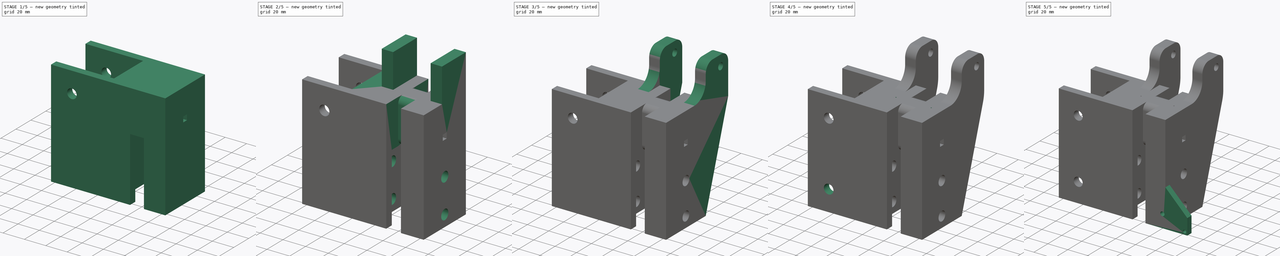
[diagram: build sequence overview — one tinted view per stage of 5, left to right]
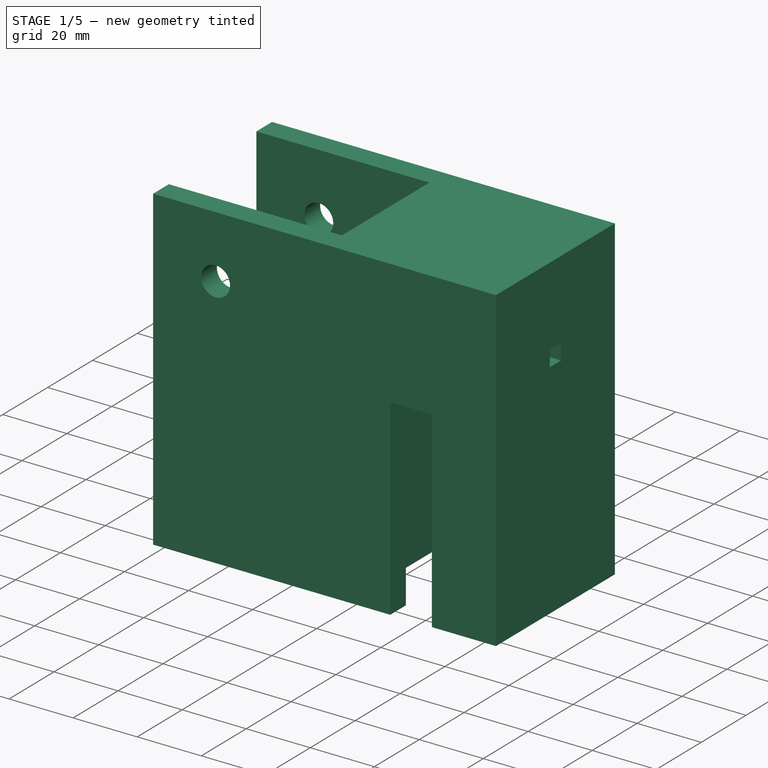
[diagram: stage 1 of 5 — iso view after this stage's code; geometry added in this stage tinted green]
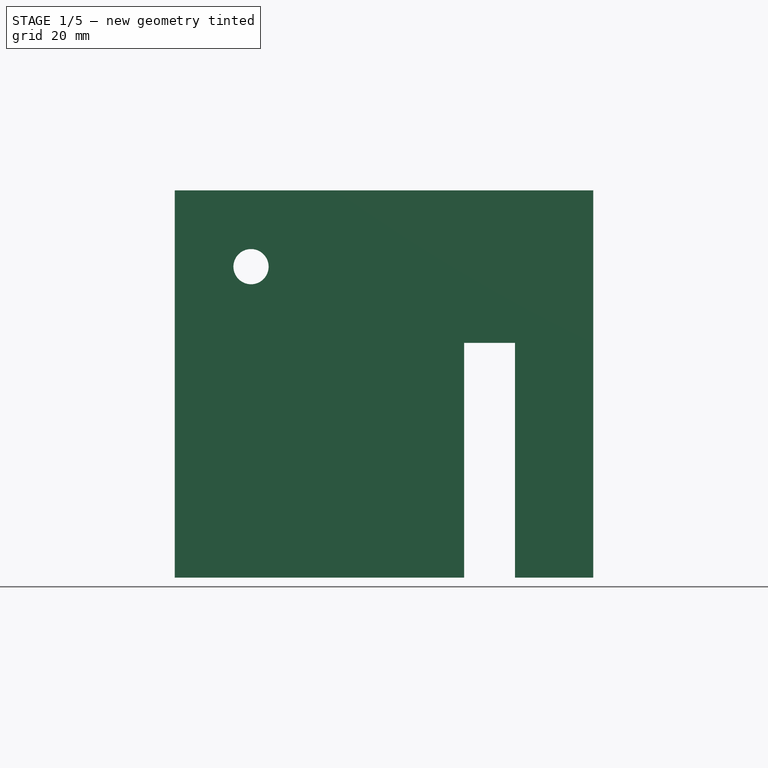
[diagram: stage 1 of 5 — front view after this stage's code; geometry added in this stage tinted green]
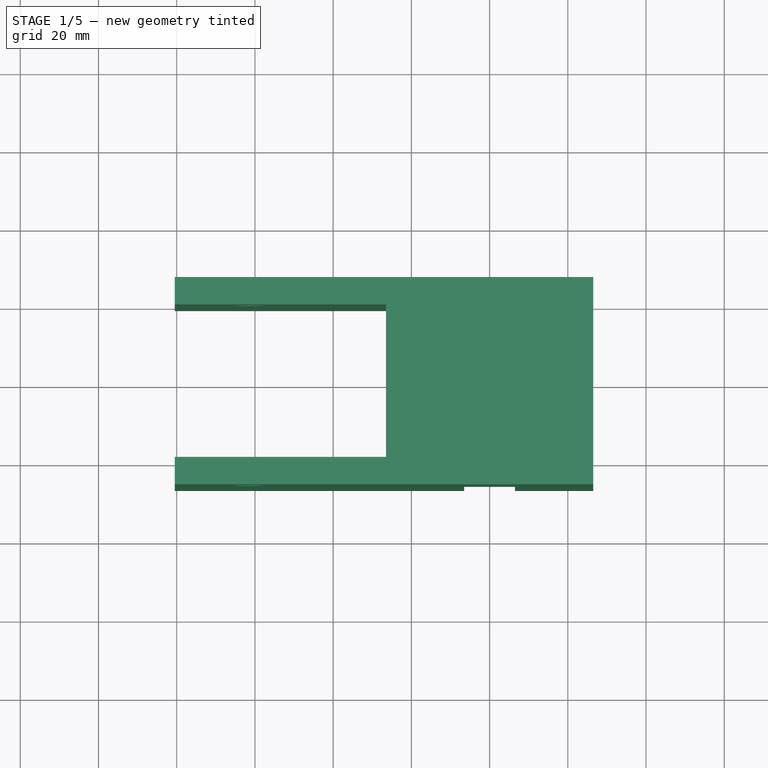
[diagram: stage 1 of 5 — top view after this stage's code; geometry added in this stage tinted green]
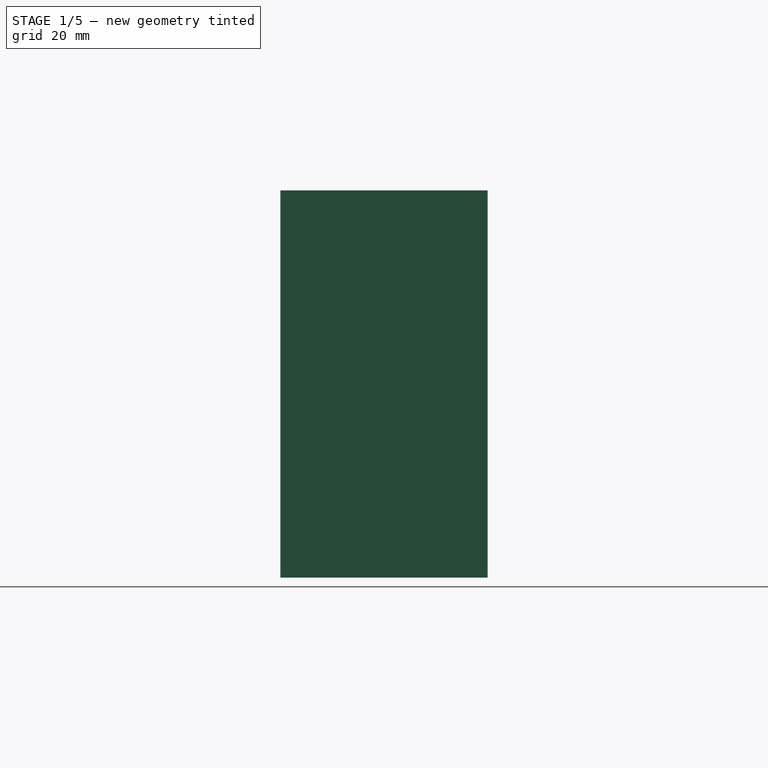
[diagram: stage 1 of 5 — right view after this stage's code; geometry added in this stage tinted green]
FCSTD DOCUMENT  (FreeCAD 1.0R39109 (Git))
Label: ARM_SideTarget_BottomMount_v1
License: All rights reserved
LicenseURL: https://en.wikipedia.org/wiki/All_rights_reserved
objects: Sketcher::SketchObject×18, PartDesign::Pad×14, PartDesign::Pocket×10, PartDesign::Fillet×7, PartDesign::Body×1
note: 130 computed .brp shape members not serialized (recipe doc carries the construction recipe); baked Part::Feature solids carry a one-line shape summary decoded from their .brp

FEATURE [Sketcher::SketchObject] Sketch
  ArcFitTolerance = 1e-06
  AttachmentSupport = -> [XY_Plane]
  FullyConstrained = true
  MakeInternals = false
  MapMode = 5
  sketch-geometry (10):
    g0: LineSegment [constr] StartX=-19.5 StartY=-19.5 StartZ=0 EndX=19.5 EndY=-19.5 EndZ=0
    g1: LineSegment [constr] StartX=19.5 StartY=-19.5 StartZ=0 EndX=19.5 EndY=19.5 EndZ=0
    g2: LineSegment [constr] StartX=19.5 StartY=19.5 StartZ=0 EndX=-19.5 EndY=19.5 EndZ=0
    g3: LineSegment [constr] StartX=-19.5 StartY=19.5 StartZ=0 EndX=-19.5 EndY=-19.5 EndZ=0
    g4: GeomPoint [constr] X=0 Y=0 Z=0
    g5: LineSegment StartX=-26.5 StartY=-26.5 StartZ=0 EndX=26.5 EndY=-26.5 EndZ=0
    g6: LineSegment StartX=26.5 StartY=-26.5 StartZ=0 EndX=26.5 EndY=26.5 EndZ=0
    g7: LineSegment StartX=26.5 StartY=26.5 StartZ=0 EndX=-26.5 EndY=26.5 EndZ=0
    g8: LineSegment StartX=-26.5 StartY=26.5 StartZ=0 EndX=-26.5 EndY=-26.5 EndZ=0
    g9: GeomPoint [constr] X=0 Y=0 Z=0
  constraints (24):
    c: Coincident(g0,g1)
    c: Coincident(g1,g2)
    c: Coincident(g2,g3)
    c: Coincident(g3,g0)
    c: Horizontal(g0)
    c: Horizontal(g2)
    c: Vertical(g1)
    c: Vertical(g3)
    c: Symmetric(g2,g0,g4)
    c: Distance(g1,g3) = 39
    c: Distance(g0,g2) = 39
    c: Coincident(g4,g-1)
    c: Coincident(g5,g6)
    c: Coincident(g6,g7)
    c: Coincident(g7,g8)
    c: Coincident(g8,g5)
    c: Horizontal(g5)
    c: Horizontal(g7)
    c: Vertical(g6)
    c: Vertical(g8)
    c: Symmetric(g7,g5,g9)
    c: Distance(g6,g8) = 53
    c: Distance(g5,g7) = 53
    c: Coincident(g9,g4)
FEATURE [PartDesign::Pad] Pad
  Direction = (0,0,1)
  Length = 39
  Length2 = 10
  Profile = -> Sketch
  ReferenceAxis = -> Sketch [N_Axis]
  Refine = true
  Suppressed = false
  Type = 0
FEATURE [Sketcher::SketchObject] Sketch001
  ArcFitTolerance = 1e-06
  AttachmentSupport = -> [Pad]
  ExternalGeometry = -> [Pad]
  FullyConstrained = true
  MakeInternals = false
  MapMode = 5
  Placement = pos=(0,0,0) rot=(1,0,0;3.14159rad)
  sketch-geometry (16):
    g0: LineSegment StartX=-26.5 StartY=26.5 StartZ=0 EndX=-6.5 EndY=26.5 EndZ=0
    g1: LineSegment StartX=-6.5 StartY=26.5 StartZ=0 EndX=-6.5 EndY=19.5 EndZ=0
    g2: LineSegment StartX=-6.5 StartY=19.5 StartZ=0 EndX=-19.5 EndY=19.5 EndZ=0
    g3: LineSegment StartX=-19.5 StartY=19.5 StartZ=0 EndX=-19.5 EndY=-19.5 EndZ=0
    g4: LineSegment StartX=-19.5 StartY=-19.5 StartZ=0 EndX=-6.5 EndY=-19.5 EndZ=0
    g5: LineSegment StartX=-6.5 StartY=-19.5 StartZ=0 EndX=-6.5 EndY=-26.5 EndZ=0
    g6: LineSegment StartX=-6.5 StartY=-26.5 StartZ=0 EndX=-26.5 EndY=-26.5 EndZ=0
    g7: LineSegment StartX=-26.5 StartY=-26.5 StartZ=0 EndX=-26.5 EndY=26.5 EndZ=0
    g8: LineSegment StartX=26.5 StartY=26.5 StartZ=0 EndX=6.5 EndY=26.5 EndZ=0
    g9: LineSegment StartX=6.5 StartY=26.5 StartZ=0 EndX=6.5 EndY=19.5 EndZ=0
    g10: LineSegment StartX=6.5 StartY=19.5 StartZ=0 EndX=19.5 EndY=19.5 EndZ=0
    g11: LineSegment StartX=19.5 StartY=19.5 StartZ=0 EndX=19.5 EndY=-19.5 EndZ=0
    g12: LineSegment StartX=19.5 StartY=-19.5 StartZ=0 EndX=6.5 EndY=-19.5 EndZ=0
    g13: LineSegment StartX=6.5 StartY=-19.5 StartZ=0 EndX=6.5 EndY=-26.5 EndZ=0
    g14: LineSegment StartX=6.5 StartY=-26.5 StartZ=0 EndX=26.5 EndY=-26.5 EndZ=0
    g15: LineSegment StartX=26.5 StartY=-26.5 StartZ=0 EndX=26.5 EndY=26.5 EndZ=0
  constraints (44):
    c: Distance(g0) = 20
    c: Coincident(g0,g-4)
    c: PointOnObject(g0,g-3)
    c: Distance(g1) = 7
    c: Coincident(g1,g0)
    c: Vertical(g1)
    c: Distance(g2) = 13
    c: Coincident(g2,g1)
    c: Horizontal(g2)
    c: Distance(g3) = 39
    c: Coincident(g3,g2)
    c: Vertical(g3)
    c: Distance(g4) = 13
    c: Coincident(g4,g3)
    c: Horizontal(g4)
    c: Coincident(g5,g4)
    c: PointOnObject(g5,g-6)
    c: Vertical(g5)
    c: Coincident(g6,g5)
    c: Coincident(g6,g-6)
    c: Coincident(g7,g6)
    c: Coincident(g7,g0)
    c: Distance(g8) = 20
    c: Coincident(g8,g-5)
    c: PointOnObject(g8,g-3)
    c: Distance(g9) = 7
    c: Coincident(g9,g8)
    c: Vertical(g9)
    c: Distance(g10) = 13
    c: Coincident(g10,g9)
    c: Horizontal(g10)
    c: Distance(g11) = 39
    c: Coincident(g11,g10)
    c: Vertical(g11)
    c: Distance(g12) = 13
    c: Coincident(g12,g11)
    c: Horizontal(g12)
    c: Coincident(g13,g12)
    c: PointOnObject(g13,g-6)
    c: Vertical(g13)
    c: Coincident(g14,g13)
    c: Coincident(g14,g-6)
    c: Coincident(g15,g14)
    c: Coincident(g15,g8)
FEATURE [PartDesign::Pad] Pad001
  BaseFeature = -> Pad
  Direction = (0,0,-1)
  Length = 60
  Length2 = 10
  Profile = -> Sketch001
  ReferenceAxis = -> Sketch001 [N_Axis]
  Refine = true
  Suppressed = false
  Type = 0
FEATURE [Sketcher::SketchObject] Sketch002
  ArcFitTolerance = 1e-06
  AttachmentSupport = -> [Pad001]
  FullyConstrained = true
  MakeInternals = false
  MapMode = 5
  Placement = pos=(0,0,0) rot=(1,0,0;3.14159rad)
  sketch-geometry (5):
    g0: LineSegment StartX=-2.5 StartY=-2.5 StartZ=0 EndX=2.5 EndY=-2.5 EndZ=0
    g1: LineSegment StartX=2.5 StartY=-2.5 StartZ=0 EndX=2.5 EndY=2.5 EndZ=0
    g2: LineSegment StartX=2.5 StartY=2.5 StartZ=0 EndX=-2.5 EndY=2.5 EndZ=0
    g3: LineSegment StartX=-2.5 StartY=2.5 StartZ=0 EndX=-2.5 EndY=-2.5 EndZ=0
    g4: GeomPoint [constr] X=0 Y=0 Z=0
  constraints (12):
    c: Coincident(g0,g1)
    c: Coincident(g1,g2)
    c: Coincident(g2,g3)
    c: Coincident(g3,g0)
    c: Horizontal(g0)
    c: Horizontal(g2)
    c: Vertical(g1)
    c: Vertical(g3)
    c: Symmetric(g2,g0,g4)
    c: Distance(g1,g3) = 5
    c: Distance(g0,g2) = 5
    c: Coincident(g4,g-1)
FEATURE [PartDesign::Pocket] Pocket
  BaseFeature = -> Pad001
  Direction = (0,0,1)
  Length = 10
  Length2 = 5
  Profile = -> Sketch002
  ReferenceAxis = -> Sketch002 [N_Axis]
  Refine = true
  Suppressed = false
  Type = 0
FEATURE [Sketcher::SketchObject] Sketch003
  ArcFitTolerance = 1e-06
  AttachmentSupport = -> [Pocket]
  FullyConstrained = true
  MakeInternals = false
  MapMode = 5
  Placement = pos=(26.5,0,0) rot=(0.57735,0.57735,0.57735;2.0944rad)
  sketch-geometry (6):
    g0: LineSegment [constr] StartX=0 StartY=0 StartZ=0 EndX=0 EndY=12 EndZ=0
    g1: LineSegment StartX=-2.5 StartY=9.5 StartZ=0 EndX=2.5 EndY=9.5 EndZ=0
    g2: LineSegment StartX=2.5 StartY=9.5 StartZ=0 EndX=2.5 EndY=14.5 EndZ=0
    g3: LineSegment StartX=2.5 StartY=14.5 StartZ=0 EndX=-2.5 EndY=14.5 EndZ=0
    g4: LineSegment StartX=-2.5 StartY=14.5 StartZ=0 EndX=-2.5 EndY=9.5 EndZ=0
    g5: GeomPoint [constr] X=0 Y=12 Z=0
  constraints (15):
    c: Distance(g0) = 12
    c: Coincident(g0,g-1)
    c: PointOnObject(g0,g-2)
    c: Coincident(g1,g2)
    c: Coincident(g2,g3)
    c: Coincident(g3,g4)
    c: Coincident(g4,g1)
    c: Horizontal(g1)
    c: Horizontal(g3)
    c: Vertical(g2)
    c: Vertical(g4)
    c: Symmetric(g3,g1,g5)
    c: Distance(g2,g4) = 5
    c: Distance(g1,g3) = 5
    c: Coincident(g5,g0)
FEATURE [PartDesign::Pocket] Pocket001
  BaseFeature = -> Pocket
  Direction = (-1,0,0)
  Length = 29
  Length2 = 5
  Profile = -> Sketch003
  ReferenceAxis = -> Sketch003 [N_Axis]
  Refine = true
  Suppressed = false
  Type = 0
FEATURE [Sketcher::SketchObject] Sketch004
  ArcFitTolerance = 1e-06
  AttachmentSupport = -> [Pocket001]
  FullyConstrained = true
  MakeInternals = false
  MapMode = 5
  Placement = pos=(-26.5,0,0) rot=(0.57735,-0.57735,-0.57735;2.0944rad)
  sketch-geometry (12):
    g0: LineSegment [constr] StartX=0 StartY=0 StartZ=0 EndX=-26.5 EndY=0 EndZ=0
    g1: LineSegment [constr] StartX=-26.5 StartY=0 StartZ=0 EndX=-26.5 EndY=39 EndZ=0
    g2: LineSegment [constr] StartX=0 StartY=0 StartZ=0 EndX=26.5 EndY=0 EndZ=0
    g3: LineSegment [constr] StartX=26.5 StartY=0 StartZ=0 EndX=26.5 EndY=39 EndZ=0
    g4: LineSegment StartX=-26.5 StartY=39 StartZ=0 EndX=-26.5 EndY=-60 EndZ=0
    g5: LineSegment StartX=-26.5 StartY=-60 StartZ=0 EndX=-19.5 EndY=-60 EndZ=0
    g6: LineSegment StartX=-19.5 StartY=-60 StartZ=0 EndX=-19.5 EndY=39 EndZ=0
    g7: LineSegment StartX=-19.5 StartY=39 StartZ=0 EndX=-26.5 EndY=39 EndZ=0
    g8: LineSegment StartX=26.5 StartY=39 StartZ=0 EndX=19.5 EndY=39 EndZ=0
    g9: LineSegment StartX=19.5 StartY=39 StartZ=0 EndX=19.5 EndY=-60 EndZ=0
    g10: LineSegment StartX=19.5 StartY=-60 StartZ=0 EndX=26.5 EndY=-60 EndZ=0
    g11: LineSegment StartX=26.5 StartY=-60 StartZ=0 EndX=26.5 EndY=39 EndZ=0
  constraints (34):
    c: Distance(g0) = 26.5
    c: Coincident(g0,g-1)
    c: PointOnObject(g0,g-1)
    c: Distance(g1) = 39
    c: Coincident(g1,g0)
    c: Vertical(g1)
    c: Distance(g2) = 26.5
    c: Coincident(g2,g0)
    c: PointOnObject(g2,g-1)
    c: Distance(g3) = 39
    c: Coincident(g3,g2)
    c: Vertical(g3)
    c: Coincident(g4,g5)
    c: Coincident(g5,g6)
    c: Coincident(g6,g7)
    c: Coincident(g7,g4)
    c: Vertical(g4)
    c: Vertical(g6)
    c: Horizontal(g5)
    c: Horizontal(g7)
    c: Distance(g4,g6) = 7
    c: Distance(g5,g7) = 99
    c: Coincident(g4,g1)
    c: Coincident(g8,g9)
    c: Coincident(g9,g10)
    c: Coincident(g10,g11)
    c: Coincident(g11,g8)
    c: Horizontal(g8)
    c: Horizontal(g10)
    c: Vertical(g9)
    c: Vertical(g11)
    c: Distance(g9,g11) = 7
    c: Distance(g8,g10) = 99
    c: Coincident(g8,g3)
FEATURE [PartDesign::Pad] Pad002
  BaseFeature = -> Pocket001
  Direction = (-1,0,0)
  Length = 54
  Length2 = 10
  Profile = -> Sketch004
  ReferenceAxis = -> Sketch004 [N_Axis]
  Refine = true
  Suppressed = false
  Type = 0
FEATURE [Sketcher::SketchObject] Sketch005
  ArcFitTolerance = 1e-06
  AttachmentSupport = -> [Pad002]
  FullyConstrained = true
  MakeInternals = false
  MapMode = 5
  Placement = pos=(0,-26.5,0) rot=(1,0,0;1.5708rad)
  sketch-geometry (7):
    g0: LineSegment [constr] StartX=0 StartY=0 StartZ=0 EndX=-26.5 EndY=0 EndZ=0
    g1: LineSegment [constr] StartX=-26.5 StartY=0 StartZ=0 EndX=-41.5 EndY=0 EndZ=0
    g2: LineSegment [constr] StartX=-41.5 StartY=0 StartZ=0 EndX=-41.5 EndY=19.5 EndZ=0
    g3: LineSegment [constr] StartX=-41.5 StartY=19.5 StartZ=0 EndX=-61 EndY=19.5 EndZ=0
    g4: LineSegment [constr] StartX=-61 StartY=19.5 StartZ=0 EndX=-61 EndY=0 EndZ=0
    g5: LineSegment [constr] StartX=-61 StartY=0 StartZ=0 EndX=-41.5 EndY=0 EndZ=0
    g6: Circle CenterX=-61 CenterY=19.5 CenterZ=0 NormalX=0 NormalY=0 NormalZ=1 AngleXU=0 Radius=4.5
  constraints (19):
    c: Distance(g0) = 26.5
    c: Coincident(g0,g-1)
    c: PointOnObject(g0,g-1)
    c: Distance(g1) = 15
    c: Coincident(g1,g0)
    c: PointOnObject(g1,g-1)
    c: Coincident(g2,g3)
    c: Coincident(g3,g4)
    c: Coincident(g4,g5)
    c: Coincident(g5,g2)
    c: Vertical(g2)
    c: Vertical(g4)
    c: Horizontal(g3)
    c: Horizontal(g5)
    c: Distance(g2,g4) = 19.5
    c: Distance(g3,g5) = 19.5
    c: Coincident(g2,g1)
    c: Diameter(g6) = 9
    c: Coincident(g6,g3)
FEATURE [PartDesign::Pocket] Pocket002
  BaseFeature = -> Pad002
  Direction = (0,1,-2e-16)
  Length = 100
  Length2 = 5
  Profile = -> Sketch005
  ReferenceAxis = -> Sketch005 [N_Axis]
  Refine = true
  Suppressed = false
  Type = 0
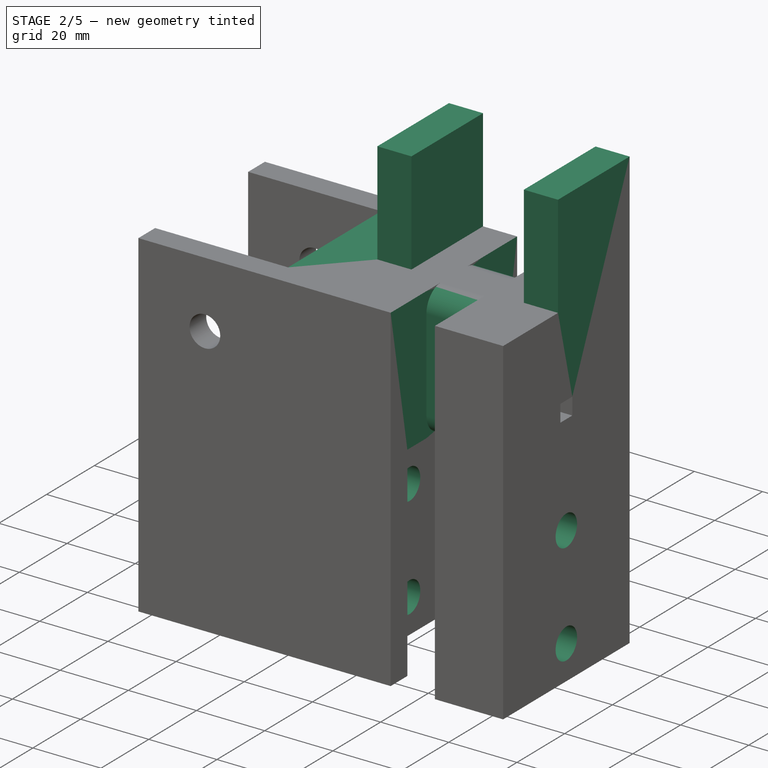
[diagram: stage 2 of 5 — iso view after this stage's code; geometry added in this stage tinted green]
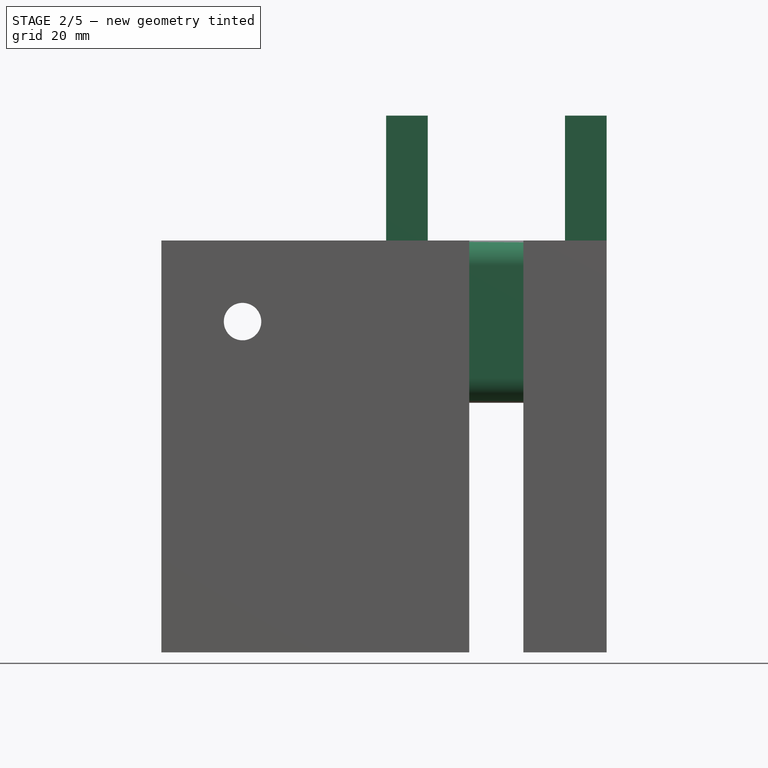
[diagram: stage 2 of 5 — front view after this stage's code; geometry added in this stage tinted green]
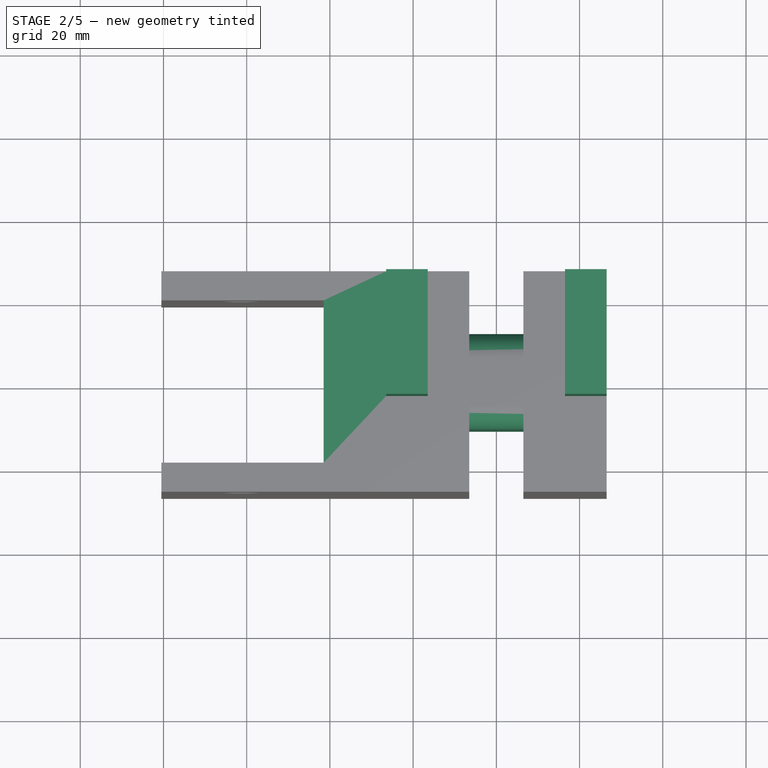
[diagram: stage 2 of 5 — top view after this stage's code; geometry added in this stage tinted green]
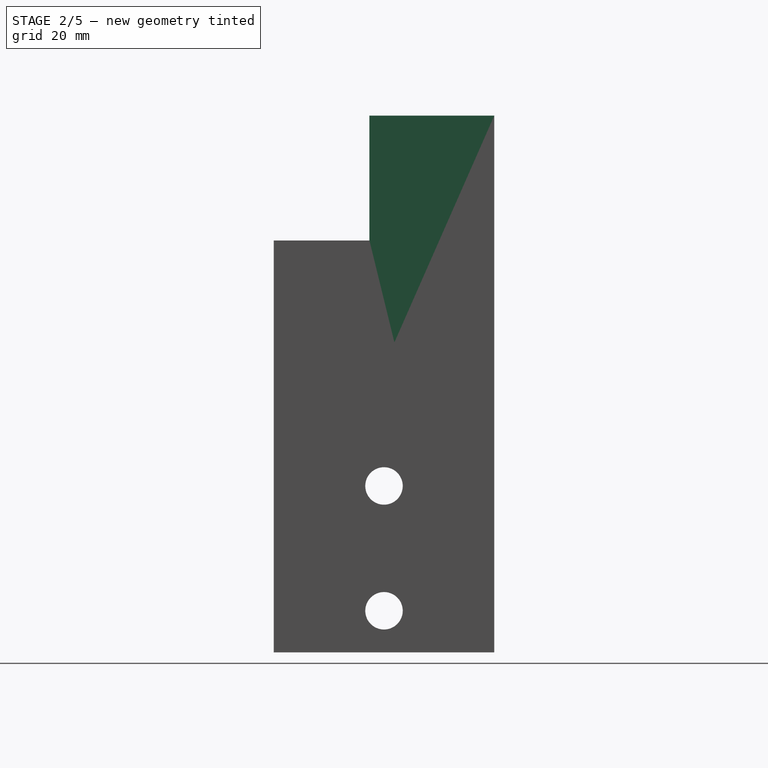
[diagram: stage 2 of 5 — right view after this stage's code; geometry added in this stage tinted green]
FEATURE [Sketcher::SketchObject] Sketch006
  ArcFitTolerance = 1e-06
  AttachmentSupport = -> [Pocket002]
  FullyConstrained = true
  MakeInternals = false
  MapMode = 5
  Placement = pos=(-26.5,0,0) rot=(0.57735,-0.57735,-0.57735;2.0944rad)
  sketch-geometry (5):
    g0: LineSegment [constr] StartX=0 StartY=0 StartZ=0 EndX=-19.5 EndY=0 EndZ=0
    g1: LineSegment StartX=-19.5 StartY=0 StartZ=0 EndX=19.5 EndY=0 EndZ=0
    g2: LineSegment StartX=19.5 StartY=0 StartZ=0 EndX=19.5 EndY=39 EndZ=0
    g3: LineSegment StartX=19.5 StartY=39 StartZ=0 EndX=-19.5 EndY=39 EndZ=0
    g4: LineSegment StartX=-19.5 StartY=39 StartZ=0 EndX=-19.5 EndY=0 EndZ=0
  constraints (14):
    c: Distance(g0) = 19.5
    c: Coincident(g0,g-1)
    c: PointOnObject(g0,g-1)
    c: Coincident(g1,g2)
    c: Coincident(g2,g3)
    c: Coincident(g3,g4)
    c: Coincident(g4,g1)
    c: Horizontal(g1)
    c: Horizontal(g3)
    c: Vertical(g2)
    c: Vertical(g4)
    c: Distance(g2,g4) = 39
    c: Distance(g1,g3) = 39
    c: Coincident(g1,g0)
FEATURE [PartDesign::Pad] Pad003
  BaseFeature = -> Pocket002
  Direction = (-1,0,0)
  Length = 15
  Length2 = 10
  Profile = -> Sketch006
  ReferenceAxis = -> Sketch006 [N_Axis]
  Refine = true
  Suppressed = false
  Type = 0
FEATURE [Sketcher::SketchObject] Sketch007
  ArcFitTolerance = 1e-06
  AttachmentSupport = -> [Pad003]
  FullyConstrained = true
  MakeInternals = false
  MapMode = 5
  Placement = pos=(0,0,39) rot=(0,0,1;0rad)
  sketch-geometry (13):
    g0: LineSegment [constr] StartX=-26.5 StartY=-26.5 StartZ=0 EndX=26.5 EndY=-26.5 EndZ=0
    g1: LineSegment [constr] StartX=26.5 StartY=-26.5 StartZ=0 EndX=26.5 EndY=26.5 EndZ=0
    g2: LineSegment [constr] StartX=26.5 StartY=26.5 StartZ=0 EndX=-26.5 EndY=26.5 EndZ=0
    g3: LineSegment [constr] StartX=-26.5 StartY=26.5 StartZ=0 EndX=-26.5 EndY=-26.5 EndZ=0
    g4: GeomPoint [constr] X=0 Y=0 Z=0
    g5: LineSegment StartX=-26.5 StartY=26.5 StartZ=0 EndX=-26.5 EndY=-3.5 EndZ=0
    g6: LineSegment StartX=-26.5 StartY=-3.5 StartZ=0 EndX=-16.5 EndY=-3.5 EndZ=0
    g7: LineSegment StartX=-16.5 StartY=-3.5 StartZ=0 EndX=-16.5 EndY=26.5 EndZ=0
    g8: LineSegment StartX=-16.5 StartY=26.5 StartZ=0 EndX=-26.5 EndY=26.5 EndZ=0
    g9: LineSegment StartX=26.5 StartY=26.5 StartZ=0 EndX=16.5 EndY=26.5 EndZ=0
    g10: LineSegment StartX=16.5 StartY=26.5 StartZ=0 EndX=16.5 EndY=-3.5 EndZ=0
    g11: LineSegment StartX=16.5 StartY=-3.5 StartZ=0 EndX=26.5 EndY=-3.5 EndZ=0
    g12: LineSegment StartX=26.5 StartY=-3.5 StartZ=0 EndX=26.5 EndY=26.5 EndZ=0
  constraints (34):
    c: Coincident(g0,g1)
    c: Coincident(g1,g2)
    c: Coincident(g2,g3)
    c: Coincident(g3,g0)
    c: Horizontal(g0)
    c: Horizontal(g2)
    c: Vertical(g1)
    c: Vertical(g3)
    c: Symmetric(g2,g0,g4)
    c: Distance(g1,g3) = 53
    c: Distance(g0,g2) = 53
    c: Coincident(g4,g-1)
    c: Coincident(g5,g6)
    c: Coincident(g6,g7)
    c: Coincident(g7,g8)
    c: Coincident(g8,g5)
    c: Vertical(g5)
    c: Vertical(g7)
    c: Horizontal(g6)
    c: Horizontal(g8)
    c: Distance(g5,g7) = 10
    c: Distance(g6,g8) = 30
    c: Coincident(g5,g2)
    c: Coincident(g9,g10)
    c: Coincident(g10,g11)
    c: Coincident(g11,g12)
    c: Coincident(g12,g9)
    c: Horizontal(g9)
    c: Horizontal(g11)
    c: Vertical(g10)
    c: Vertical(g12)
    c: Distance(g10,g12) = 10
    c: Distance(g9,g11) = 30
    c: Coincident(g9,g1)
FEATURE [PartDesign::Pad] Pad004
  BaseFeature = -> Pad003
  Direction = (0,0,1)
  Length = 30
  Length2 = 10
  Profile = -> Sketch007
  ReferenceAxis = -> Sketch007 [N_Axis]
  Refine = true
  Suppressed = false
  Type = 0
FEATURE [Sketcher::SketchObject] Sketch009
  ArcFitTolerance = 1e-06
  FullyConstrained = true
  MakeInternals = false
  MapMode = 5
  Placement = pos=(0,0,0) rot=(1,0,0;3.14159rad)
  sketch-geometry (8):
    g0: LineSegment StartX=-6.5 StartY=26.5 StartZ=0 EndX=-6.5 EndY=11.5 EndZ=0
    g1: LineSegment StartX=-6.5 StartY=11.5 StartZ=0 EndX=6.5 EndY=11.5 EndZ=0
    g2: LineSegment StartX=6.5 StartY=11.5 StartZ=0 EndX=6.5 EndY=26.5 EndZ=0
    g3: LineSegment StartX=6.5 StartY=26.5 StartZ=0 EndX=-6.5 EndY=26.5 EndZ=0
    g4: LineSegment StartX=-6.5 StartY=-26.5 StartZ=0 EndX=6.5 EndY=-26.5 EndZ=0
    g5: LineSegment StartX=6.5 StartY=-26.5 StartZ=0 EndX=6.5 EndY=-11.5 EndZ=0
    g6: LineSegment StartX=6.5 StartY=-11.5 StartZ=0 EndX=-6.5 EndY=-11.5 EndZ=0
    g7: LineSegment StartX=-6.5 StartY=-11.5 StartZ=0 EndX=-6.5 EndY=-26.5 EndZ=0
  constraints (22):
    c: Coincident(g0,g1)
    c: Coincident(g1,g2)
    c: Coincident(g2,g3)
    c: Coincident(g3,g0)
    c: Vertical(g0)
    c: Vertical(g2)
    c: Horizontal(g1)
    c: Horizontal(g3)
    c: Distance(g0,g2) = 13
    c: Distance(g1,g3) = 15
    c: Coincident(g0,g-3)
    c: Coincident(g4,g5)
    c: Coincident(g5,g6)
    c: Coincident(g6,g7)
    c: Coincident(g7,g4)
    c: Horizontal(g4)
    c: Horizontal(g6)
    c: Vertical(g5)
    c: Vertical(g7)
    c: Distance(g5,g7) = 13
    c: Distance(g4,g6) = 15
    c: Coincident(g4,g-4)
FEATURE [PartDesign::Pocket] Pocket004
  BaseFeature = -> Pad004
  Direction = (0,0,1)
  Length = 50
  Length2 = 5
  Profile = -> Sketch009
  ReferenceAxis = -> Sketch009 [N_Axis]
  Refine = true
  Suppressed = false
  Type = 0
FEATURE [Sketcher::SketchObject] Sketch010
  ArcFitTolerance = 1e-06
  AttachmentSupport = -> [Pocket004]
  ExternalGeometry = -> [Pocket004]
  FullyConstrained = true
  MakeInternals = false
  MapMode = 5
  Placement = pos=(26.5,0,0) rot=(0.57735,0.57735,0.57735;2.0944rad)
  sketch-geometry (4):
    g0: LineSegment [constr] StartX=0 StartY=-60 StartZ=0 EndX=0 EndY=-50 EndZ=0
    g1: LineSegment [constr] StartX=0 StartY=-50 StartZ=0 EndX=0 EndY=-20 EndZ=0
    g2: Circle CenterX=0 CenterY=-50 CenterZ=0 NormalX=0 NormalY=0 NormalZ=1 AngleXU=0 Radius=4.5
    g3: Circle CenterX=0 CenterY=-20 CenterZ=0 NormalX=0 NormalY=0 NormalZ=1 AngleXU=0 Radius=4.5
  constraints (10):
    c: Distance(g0) = 10
    c: Symmetric(g-3,g-3,g0)
    c: Vertical(g0)
    c: Distance(g1) = 30
    c: Coincident(g1,g0)
    c: PointOnObject(g1,g-2)
    c: Diameter(g2) = 9
    c: Coincident(g2,g0)
    c: Diameter(g3) = 9
    c: Coincident(g3,g1)
FEATURE [PartDesign::Pocket] Pocket005
  BaseFeature = -> Pocket004
  Direction = (-1,0,0)
  Length = 80
  Length2 = 5
  Profile = -> Sketch010
  ReferenceAxis = -> Sketch010 [N_Axis]
  Refine = true
  Suppressed = false
  Type = 0
FEATURE [PartDesign::Fillet] Fillet
  Base = -> Pocket005 [Edge55,Edge49]
  BaseFeature = -> Pocket005
  Radius = 6
  Refine = true
  SupportTransform = false
  Suppressed = false
  UseAllEdges = false
FEATURE [PartDesign::Fillet] Fillet001
  Base = -> Fillet [Edge11,Edge25]
  BaseFeature = -> Fillet
  Radius = 6
  Refine = true
  SupportTransform = false
  Suppressed = false
  UseAllEdges = false
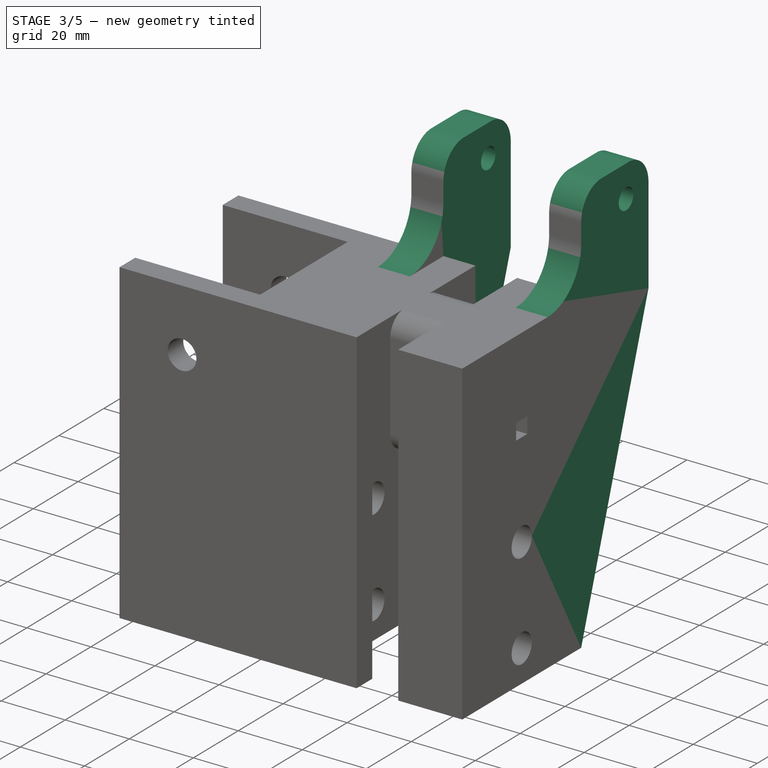
[diagram: stage 3 of 5 — iso view after this stage's code; geometry added in this stage tinted green]
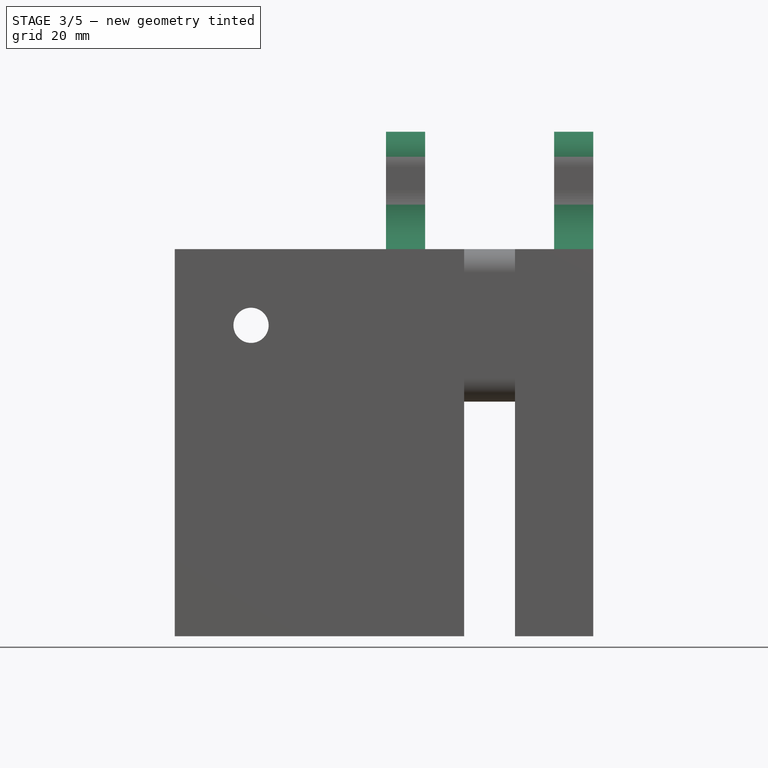
[diagram: stage 3 of 5 — front view after this stage's code; geometry added in this stage tinted green]
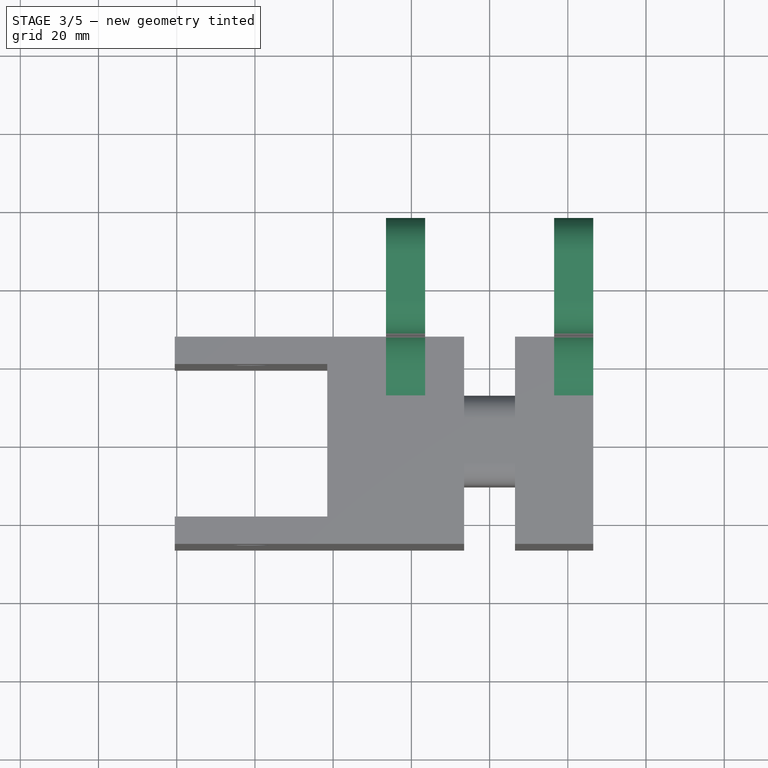
[diagram: stage 3 of 5 — top view after this stage's code; geometry added in this stage tinted green]
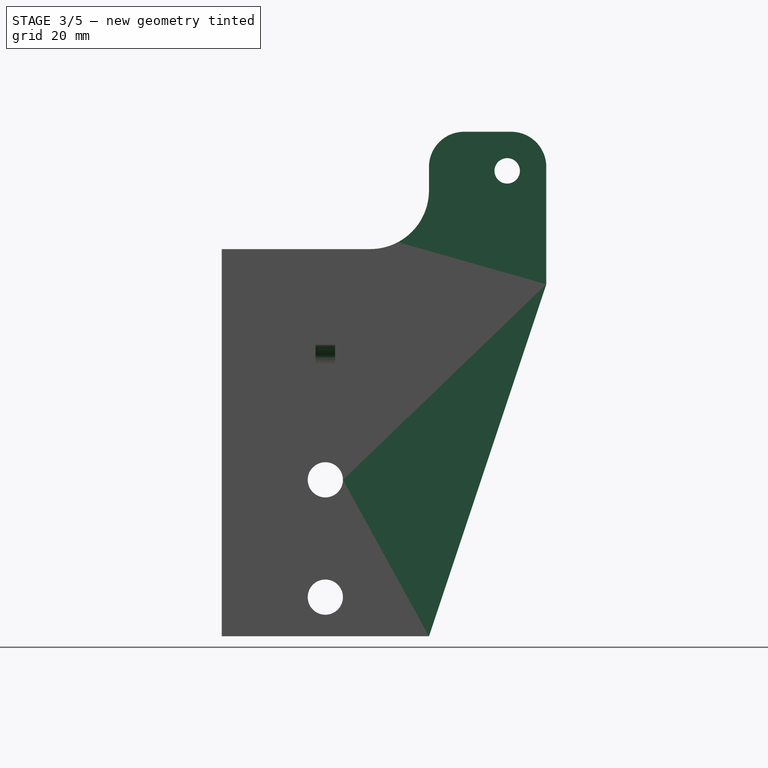
[diagram: stage 3 of 5 — right view after this stage's code; geometry added in this stage tinted green]
FEATURE [PartDesign::Fillet] Fillet002
  Base = -> Fillet001 [Edge138]
  BaseFeature = -> Fillet001
  Radius = 5
  Refine = true
  SupportTransform = false
  Suppressed = false
  UseAllEdges = false
FEATURE [PartDesign::Fillet] Fillet003
  Base = -> Fillet002 [Edge45]
  BaseFeature = -> Fillet002
  Radius = 2.5
  Refine = true
  SupportTransform = false
  Suppressed = false
  UseAllEdges = false
FEATURE [Sketcher::SketchObject] Sketch011
  ArcFitTolerance = 1e-06
  AttachmentSupport = -> [Fillet003]
  ExternalGeometry = -> [Fillet003]
  FullyConstrained = true
  MakeInternals = false
  MapMode = 5
  Placement = pos=(0,26.5,0) rot=(0,0.707107,0.707107;3.14159rad)
  sketch-geometry (8):
    g0: LineSegment StartX=-26.5 StartY=69 StartZ=0 EndX=-26.5 EndY=-60 EndZ=0
    g1: LineSegment StartX=-26.5 StartY=-60 StartZ=0 EndX=-16.5 EndY=-60 EndZ=0
    g2: LineSegment StartX=-16.5 StartY=-60 StartZ=0 EndX=-16.5 EndY=69 EndZ=0
    g3: LineSegment StartX=-16.5 StartY=69 StartZ=0 EndX=-26.5 EndY=69 EndZ=0
    g4: LineSegment StartX=26.5 StartY=69 StartZ=0 EndX=16.5 EndY=69 EndZ=0
    g5: LineSegment StartX=16.5 StartY=69 StartZ=0 EndX=16.5 EndY=-60 EndZ=0
    g6: LineSegment StartX=16.5 StartY=-60 StartZ=0 EndX=26.5 EndY=-60 EndZ=0
    g7: LineSegment StartX=26.5 StartY=-60 StartZ=0 EndX=26.5 EndY=69 EndZ=0
  constraints (22):
    c: Coincident(g0,g1)
    c: Coincident(g1,g2)
    c: Coincident(g2,g3)
    c: Coincident(g3,g0)
    c: Vertical(g0)
    c: Vertical(g2)
    c: Horizontal(g1)
    c: Horizontal(g3)
    c: Distance(g0,g2) = 10
    c: Distance(g1,g3) = 129
    c: Coincident(g0,g-3)
    c: Coincident(g4,g5)
    c: Coincident(g5,g6)
    c: Coincident(g6,g7)
    c: Coincident(g7,g4)
    c: Horizontal(g4)
    c: Horizontal(g6)
    c: Vertical(g5)
    c: Vertical(g7)
    c: Distance(g5,g7) = 10
    c: Distance(g4,g6) = 129
    c: Coincident(g4,g-4)
FEATURE [PartDesign::Pad] Pad005
  BaseFeature = -> Fillet003
  Direction = (0,1,-2e-16)
  Length = 30
  Length2 = 10
  Profile = -> Sketch011
  ReferenceAxis = -> Sketch011 [N_Axis]
  Refine = true
  Suppressed = false
  Type = 0
FEATURE [Sketcher::SketchObject] Sketch012
  ArcFitTolerance = 1e-06
  AttachmentSupport = -> [Pad005]
  ExternalGeometry = -> [Pad005]
  FullyConstrained = true
  MakeInternals = false
  MapMode = 5
  Placement = pos=(26.5,0,0) rot=(0.57735,0.57735,0.57735;2.0944rad)
  sketch-geometry (8):
    g0: LineSegment [constr] StartX=56.5 StartY=69 StartZ=0 EndX=46.5 EndY=69 EndZ=0
    g1: LineSegment [constr] StartX=46.5 StartY=69 StartZ=0 EndX=46.5 EndY=59 EndZ=0
    g2: LineSegment [constr] StartX=46.5 StartY=59 StartZ=0 EndX=56.5 EndY=59 EndZ=0
    g3: LineSegment [constr] StartX=56.5 StartY=59 StartZ=0 EndX=56.5 EndY=69 EndZ=0
    g4: Circle CenterX=46.5 CenterY=59 CenterZ=0 NormalX=0 NormalY=0 NormalZ=1 AngleXU=0 Radius=3.25
    g5: LineSegment StartX=56.5 StartY=-60 StartZ=0 EndX=26.5 EndY=-60 EndZ=0
    g6: LineSegment StartX=56.5 StartY=-60 StartZ=0 EndX=56.5 EndY=30 EndZ=0
    g7: LineSegment StartX=56.5 StartY=30 StartZ=0 EndX=26.5 EndY=-60 EndZ=0
  constraints (21):
    c: Coincident(g0,g1)
    c: Coincident(g1,g2)
    c: Coincident(g2,g3)
    c: Coincident(g3,g0)
    c: Horizontal(g0)
    c: Horizontal(g2)
    c: Vertical(g1)
    c: Vertical(g3)
    c: Distance(g1,g3) = 10
    c: Distance(g0,g2) = 10
    c: Coincident(g0,g-4)
    c: Diameter(g4) = 6.5
    c: Coincident(g4,g1)
    c: Distance(g5) = 30
    c: Coincident(g5,g-4)
    c: Horizontal(g5)
    c: Distance(g6) = 90
    c: Coincident(g6,g5)
    c: PointOnObject(g6,g-4)
    c: Coincident(g7,g6)
    c: Coincident(g7,g5)
FEATURE [PartDesign::Pocket] Pocket006
  BaseFeature = -> Pad005
  Direction = (-1,0,0)
  Length = 80
  Length2 = 5
  Profile = -> Sketch012
  ReferenceAxis = -> Sketch012 [N_Axis]
  Refine = true
  Suppressed = false
  Type = 0
FEATURE [Sketcher::SketchObject] Sketch013
  ArcFitTolerance = 1e-06
  AttachmentSupport = -> [Pocket006]
  ExternalGeometry = -> [Pocket006]
  FullyConstrained = true
  MakeInternals = false
  MapMode = 5
  Placement = pos=(0,0,69) rot=(0,0,1;0rad)
  sketch-geometry (8):
    g0: LineSegment [constr] StartX=-26.5 StartY=56.5 StartZ=0 EndX=-26.5 EndY=26.5 EndZ=0
    g1: LineSegment [constr] StartX=-26.5 StartY=26.5 StartZ=0 EndX=26.5 EndY=26.5 EndZ=0
    g2: LineSegment [constr] StartX=26.5 StartY=26.5 StartZ=0 EndX=26.5 EndY=56.5 EndZ=0
    g3: LineSegment [constr] StartX=26.5 StartY=56.5 StartZ=0 EndX=-26.5 EndY=56.5 EndZ=0
    g4: LineSegment StartX=-26.5 StartY=26.5 StartZ=0 EndX=-26.5 EndY=-3.5 EndZ=0
    g5: LineSegment StartX=-26.5 StartY=-3.5 StartZ=0 EndX=26.5 EndY=-3.5 EndZ=0
    g6: LineSegment StartX=26.5 StartY=-3.5 StartZ=0 EndX=26.5 EndY=26.5 EndZ=0
    g7: LineSegment StartX=26.5 StartY=26.5 StartZ=0 EndX=-26.5 EndY=26.5 EndZ=0
  constraints (20):
    c: Coincident(g0,g1)
    c: Coincident(g1,g2)
    c: Coincident(g2,g3)
    c: Coincident(g3,g0)
    c: Vertical(g0)
    c: Vertical(g2)
    c: Horizontal(g1)
    c: Horizontal(g3)
    c: Coincident(g0,g-3)
    c: Symmetric(g-4,g-4,g1)
    c: Coincident(g4,g5)
    c: Coincident(g5,g6)
    c: Coincident(g6,g7)
    c: Coincident(g7,g4)
    c: Vertical(g4)
    c: Vertical(g6)
    c: Horizontal(g5)
    c: Horizontal(g7)
    c: Coincident(g4,g0)
    c: Coincident(g5,g-4)
FEATURE [PartDesign::Pocket] Pocket007
  BaseFeature = -> Pocket006
  Direction = (0,0,-1)
  Length = 30
  Length2 = 5
  Profile = -> Sketch013
  ReferenceAxis = -> Sketch013 [N_Axis]
  Refine = true
  Suppressed = false
  Type = 0
FEATURE [PartDesign::Fillet] Fillet004
  Base = -> Pocket007 [Edge154,Edge88]
  BaseFeature = -> Pocket007
  Radius = 15
  Refine = true
  SupportTransform = false
  Suppressed = false
  UseAllEdges = false
FEATURE [PartDesign::Fillet] Fillet005
  Base = -> Fillet004 [Edge169,Edge42,Edge170,Edge51]
  BaseFeature = -> Fillet004
  Radius = 9
  Refine = true
  SupportTransform = false
  Suppressed = false
  UseAllEdges = false
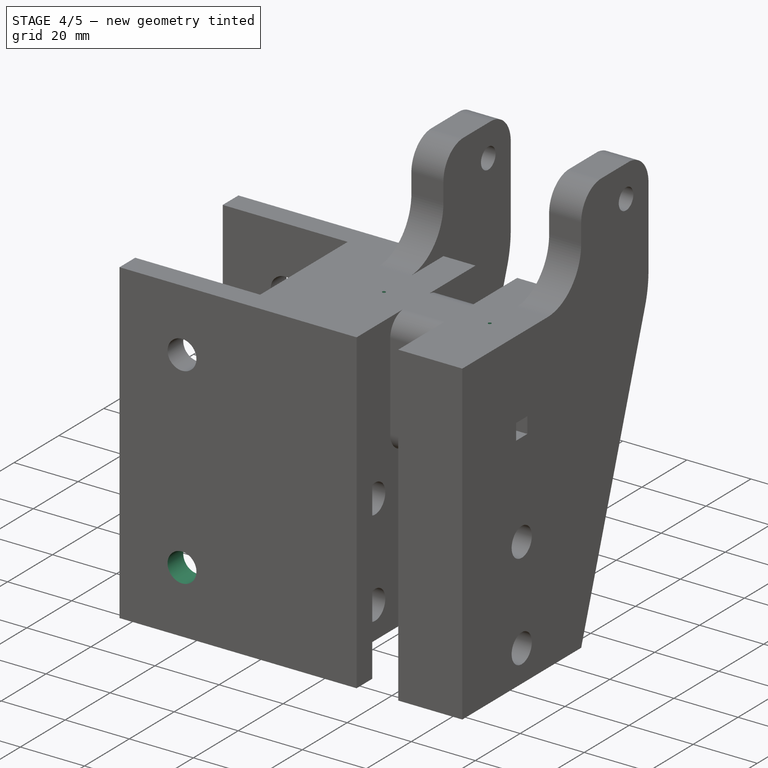
[diagram: stage 4 of 5 — iso view after this stage's code; geometry added in this stage tinted green]
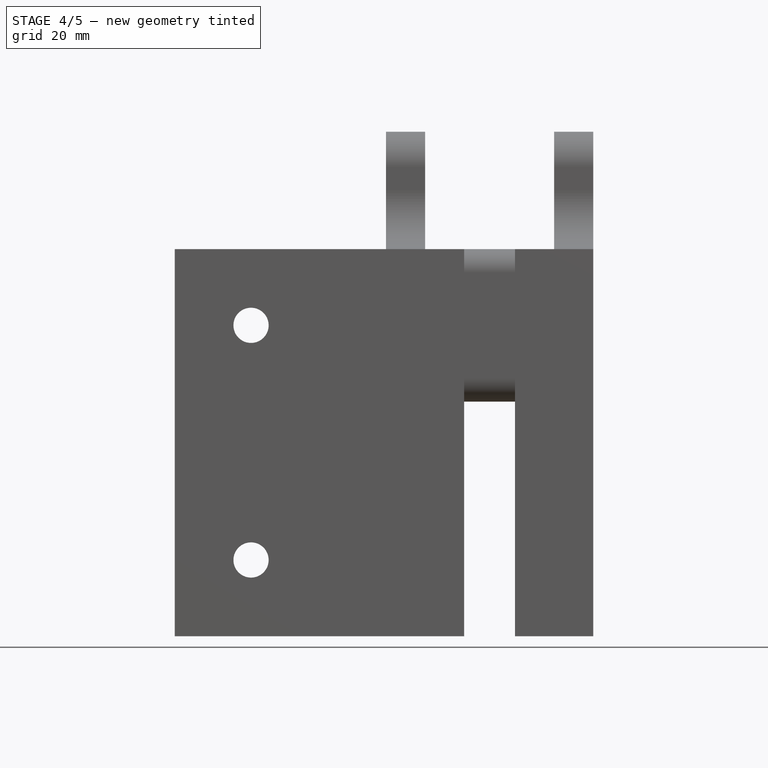
[diagram: stage 4 of 5 — front view after this stage's code; geometry added in this stage tinted green]
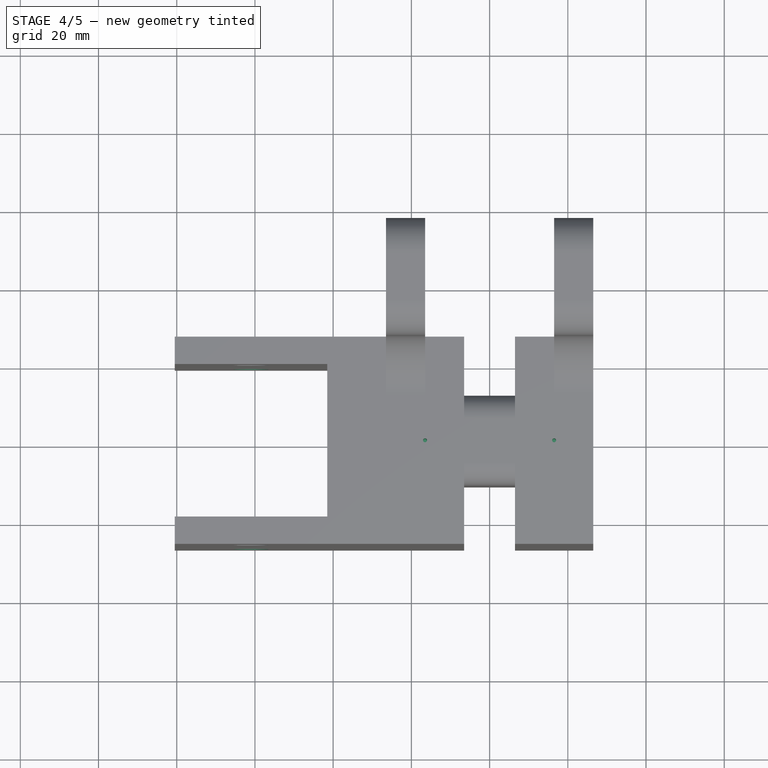
[diagram: stage 4 of 5 — top view after this stage's code; geometry added in this stage tinted green]
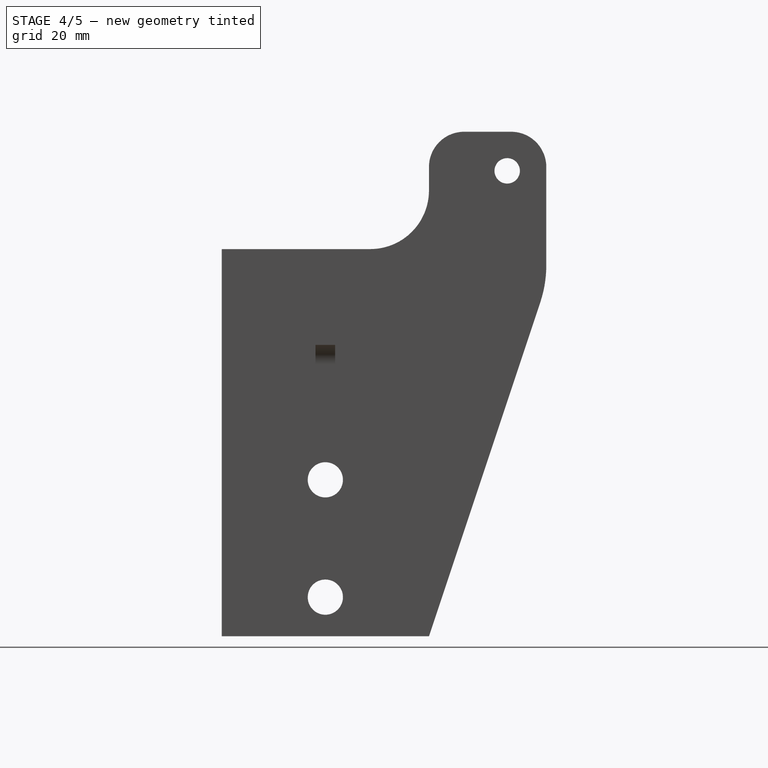
[diagram: stage 4 of 5 — right view after this stage's code; geometry added in this stage tinted green]
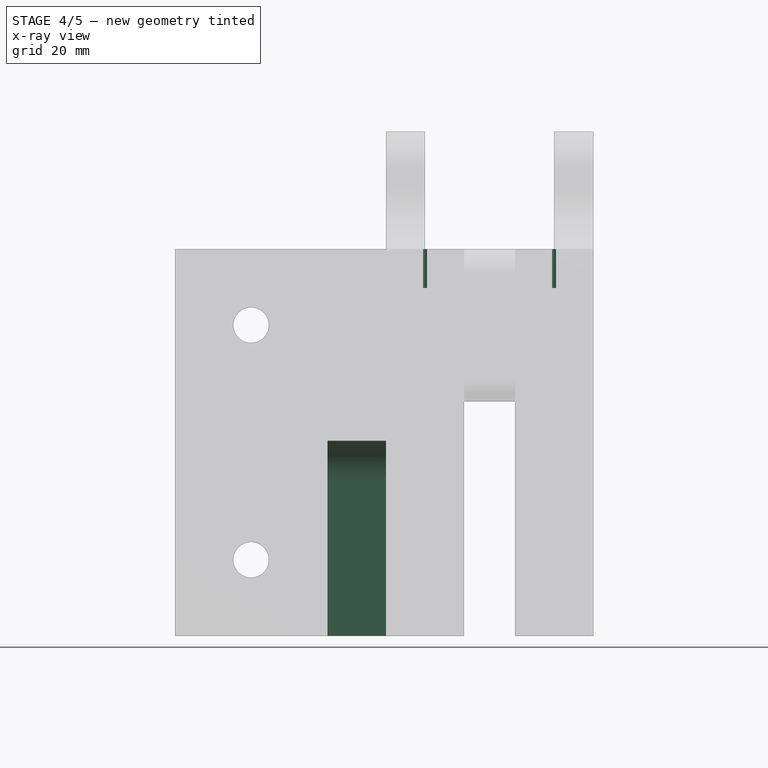
[diagram: stage 4 of 5 — x-ray composite at the front view; earlier geometry ghosted, this stage's added geometry solid]
FEATURE [PartDesign::Fillet] Fillet006
  Base = -> Fillet005 [Edge183,Edge52]
  BaseFeature = -> Fillet005
  Radius = 30
  Refine = true
  SupportTransform = false
  Suppressed = false
  UseAllEdges = false
FEATURE [Sketcher::SketchObject] Sketch014
  ArcFitTolerance = 1e-06
  AttachmentSupport = -> [Fillet006]
  FullyConstrained = false
  MakeInternals = false
  MapMode = 5
  Placement = pos=(0,0,39) rot=(0,0,1;0rad)
  sketch-geometry (4):
    g0: LineSegment [constr] StartX=0 StartY=0 StartZ=0 EndX=-16.5 EndY=0 EndZ=0
    g1: LineSegment [constr] StartX=0 StartY=0 StartZ=0 EndX=16.5 EndY=0 EndZ=0
    g2: Circle CenterX=16.5 CenterY=0 CenterZ=0 NormalX=0 NormalY=0 NormalZ=1 AngleXU=0 Radius=0.5
    g3: Circle CenterX=-16.5 CenterY=0 CenterZ=0 NormalX=0 NormalY=0 NormalZ=1 AngleXU=0 Radius=0.5
  constraints (8):
    c: Distance(g0) = 16.5
    c: Coincident(g0,g-1)
    c: PointOnObject(g0,g-1)
    c: Distance(g1) = 16.5
    c: Diameter(g2) = 1
    c: Coincident(g2,g1)
    c: Diameter(g3) = 1
    c: Coincident(g3,g0)
FEATURE [PartDesign::Pocket] Pocket008
  BaseFeature = -> Fillet006
  Direction = (0,0,-1)
  Length = 10
  Length2 = 5
  Profile = -> Sketch014
  ReferenceAxis = -> Sketch014 [N_Axis]
  Refine = true
  Suppressed = false
  Type = 0
FEATURE [Sketcher::SketchObject] Sketch015
  ArcFitTolerance = 1e-06
  AttachmentSupport = -> [Pocket008]
  ExternalGeometry = -> [Pocket008]
  FullyConstrained = true
  MakeInternals = false
  MapMode = 5
  Placement = pos=(0,-26.5,0) rot=(1,0,0;1.5708rad)
  sketch-geometry (5):
    g0: LineSegment [constr] StartX=-80.5 StartY=-60 StartZ=0 EndX=-61 EndY=-60 EndZ=0
    g1: LineSegment [constr] StartX=-61 StartY=-60 StartZ=0 EndX=-61 EndY=-40.5 EndZ=0
    g2: LineSegment [constr] StartX=-61 StartY=-40.5 StartZ=0 EndX=-80.5 EndY=-40.5 EndZ=0
    g3: LineSegment [constr] StartX=-80.5 StartY=-40.5 StartZ=0 EndX=-80.5 EndY=-60 EndZ=0
    g4: Circle CenterX=-61 CenterY=-40.5 CenterZ=0 NormalX=0 NormalY=0 NormalZ=1 AngleXU=0 Radius=4.5
  constraints (13):
    c: Coincident(g0,g1)
    c: Coincident(g1,g2)
    c: Coincident(g2,g3)
    c: Coincident(g3,g0)
    c: Horizontal(g0)
    c: Horizontal(g2)
    c: Vertical(g1)
    c: Vertical(g3)
    c: Distance(g1,g3) = 19.5
    c: Distance(g0,g2) = 19.5
    c: Coincident(g0,g-3)
    c: Diameter(g4) = 9
    c: Coincident(g4,g1)
FEATURE [PartDesign::Pocket] Pocket009
  BaseFeature = -> Pocket008
  Direction = (0,1,-2e-16)
  Length = 80
  Length2 = 5
  Profile = -> Sketch015
  ReferenceAxis = -> Sketch015 [N_Axis]
  Refine = true
  Suppressed = false
  Type = 0
FEATURE [Sketcher::SketchObject] Sketch016
  ArcFitTolerance = 1e-06
  AttachmentSupport = -> [Pocket009]
  ExternalGeometry = -> [Pocket009]
  FullyConstrained = false
  MakeInternals = false
  MapMode = 5
  Placement = pos=(-26.5,0,0) rot=(0.57735,-0.57735,-0.57735;2.0944rad)
  sketch-geometry (10):
    g0: LineSegment StartX=-19.5 StartY=0 StartZ=0 EndX=-19.5 EndY=-60 EndZ=0
    g1: LineSegment StartX=-19.5 StartY=-60 StartZ=0 EndX=-10 EndY=-60 EndZ=0
    g2: LineSegment StartX=19.5 StartY=-60 StartZ=0 EndX=19.5 EndY=0 EndZ=0
    g3: LineSegment StartX=19.5 StartY=0 StartZ=0 EndX=-19.5 EndY=0 EndZ=0
    g4: ArcOfCircle CenterX=0 CenterY=-20 CenterZ=0 NormalX=0 NormalY=0 NormalZ=1 AngleXU=0 Radius=10 StartAngle=0 EndAngle=3.14159
    g5: LineSegment [constr] StartX=0 StartY=-20 StartZ=0 EndX=0 EndY=-60 EndZ=0
    g6: LineSegment StartX=10 StartY=-60 StartZ=0 EndX=10 EndY=-20 EndZ=0
    g7: LineSegment StartX=-10 StartY=-20 StartZ=0 EndX=-10 EndY=-60 EndZ=0
    g8: GeomPoint [constr] X=0 Y=-40 Z=0
    g9: LineSegment StartX=10 StartY=-60 StartZ=0 EndX=19.5 EndY=-60 EndZ=0
  constraints (18):
    c: Coincident(g0,g1)
    c: Coincident(g9,g2)
    c: Coincident(g2,g3)
    c: Coincident(g3,g0)
    c: Vertical(g0)
    c: Vertical(g2)
    c: Horizontal(g1)
    c: Horizontal(g3)
    c: Coincident(g0,g-3)
    c: Coincident(g9,g-4)
    c: Diameter(g4) = 20
    c: Coincident(g4,g-5)
    c: Coincident(g5,g4)
    c: Symmetric(g1,g9,g5)
    c: Vertical(g6)
    c: Vertical(g7)
    c: Distance(g6,g7) = 20
    c: Coincident(g4,g6)
FEATURE [PartDesign::Pad] Pad006
  BaseFeature = -> Pocket009
  Direction = (-1,0,0)
  Length = 15
  Length2 = 10
  Profile = -> Sketch016
  ReferenceAxis = -> Sketch016 [N_Axis]
  Refine = true
  Suppressed = false
  Type = 0
FEATURE [PartDesign::Pad] Pad007
  BaseFeature = -> Pad006
  Direction = (1,0,0)
  Length = 0.25
  Length2 = 10
  Profile = -> Pad006 [Face68]
  Refine = true
  Suppressed = false
  Type = 0
FEATURE [PartDesign::Pad] Pad008
  BaseFeature = -> Pad007
  Direction = (-1,0,0)
  Length = 0.25
  Length2 = 10
  Profile = -> Pad007 [Face24]
  Refine = true
  Suppressed = false
  Type = 0
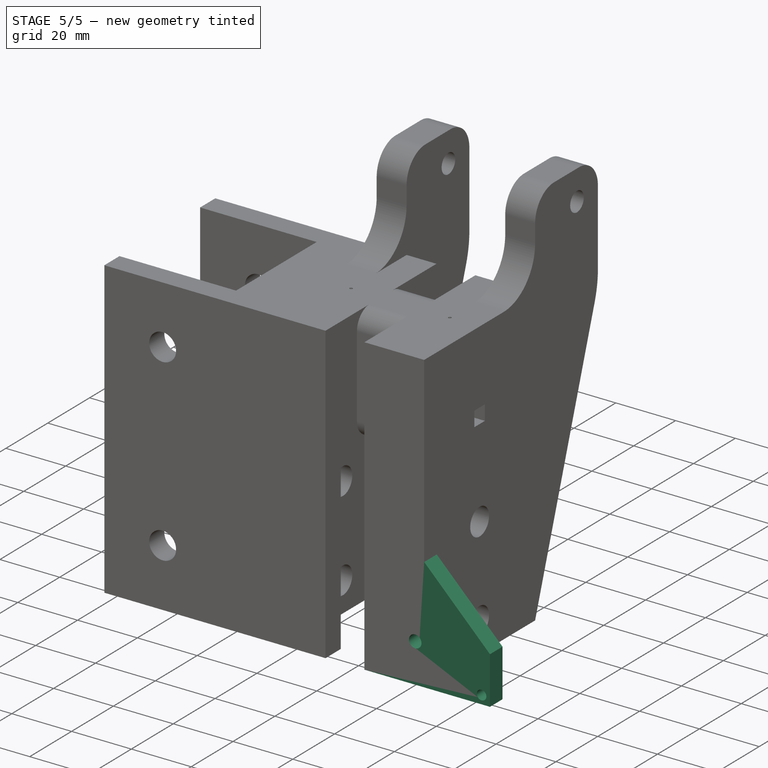
[diagram: stage 5 of 5 — iso view after this stage's code; geometry added in this stage tinted green]
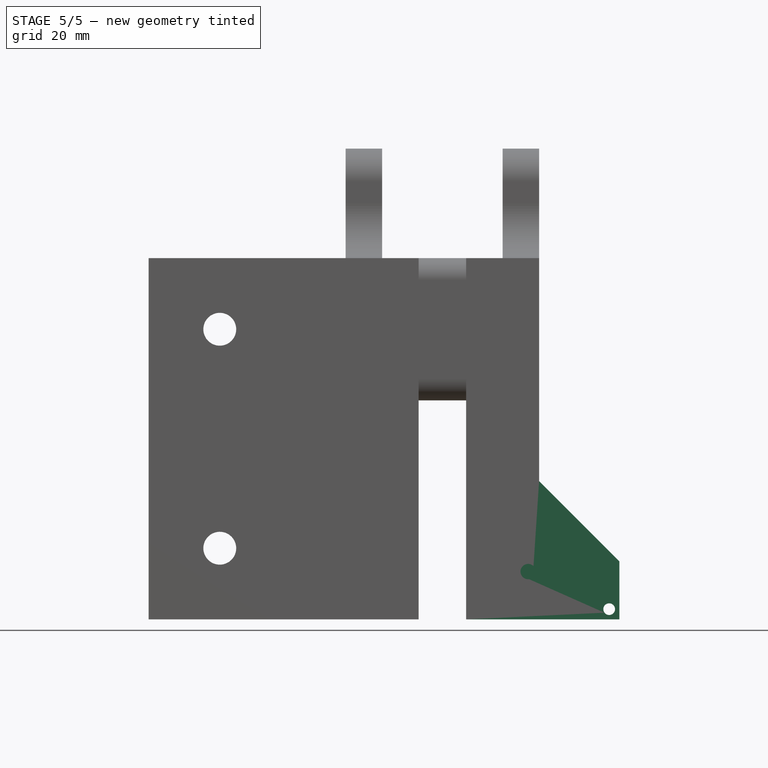
[diagram: stage 5 of 5 — front view after this stage's code; geometry added in this stage tinted green]
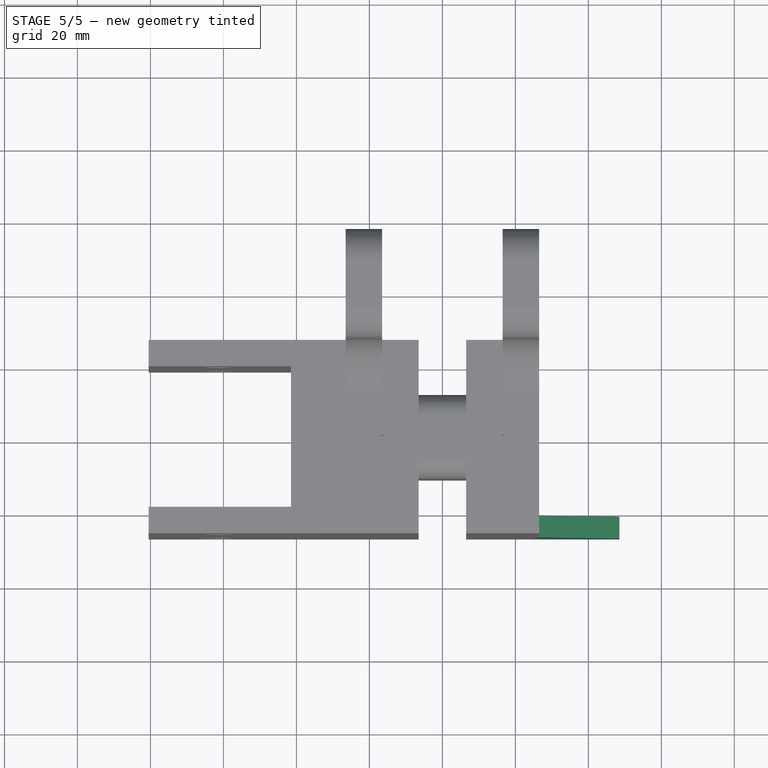
[diagram: stage 5 of 5 — top view after this stage's code; geometry added in this stage tinted green]
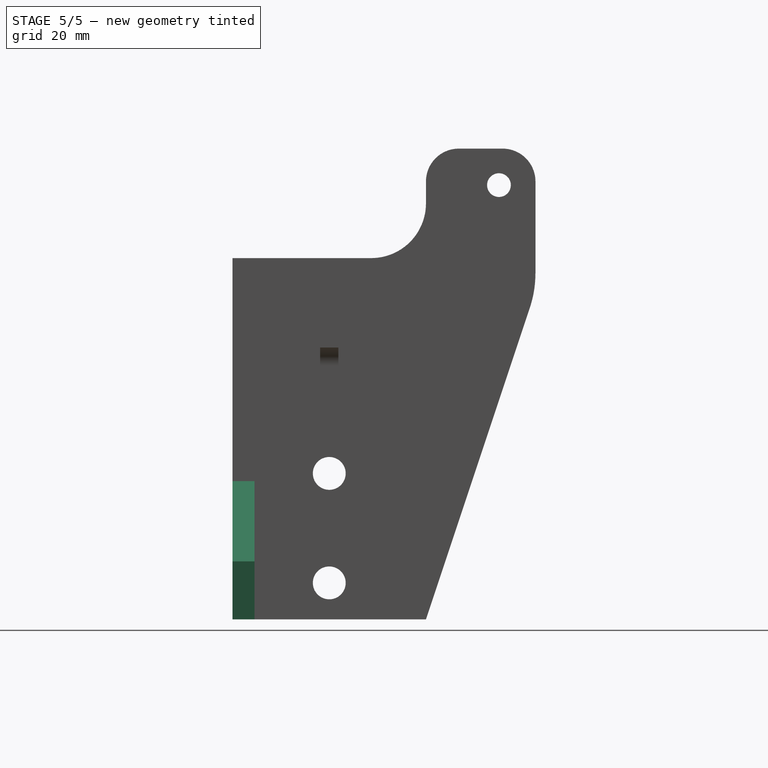
[diagram: stage 5 of 5 — right view after this stage's code; geometry added in this stage tinted green]
FEATURE [PartDesign::Pad] Pad009
  BaseFeature = -> Pad008
  Direction = (0,-1,0)
  Length = 0.25
  Length2 = 10
  Profile = -> Pad008 [Face54,Face20]
  Refine = true
  Suppressed = false
  Type = 0
FEATURE [PartDesign::Pad] Pad010
  BaseFeature = -> Pad009
  Direction = (0,1,0)
  Length = 0.25
  Length2 = 10
  Profile = -> Pad009 [Face50,Face21]
  Refine = true
  Suppressed = false
  Type = 0
FEATURE [Sketcher::SketchObject] Sketch017
  ArcFitTolerance = 1e-06
  AttachmentSupport = -> [Pad010]
  ExternalGeometry = -> [Pad010]
  FullyConstrained = false
  MakeInternals = false
  MapMode = 5
  Placement = pos=(0,-26.5,0) rot=(1,0,0;1.5708rad)
  sketch-geometry (12):
    g0: LineSegment [constr] StartX=6.5 StartY=-60 StartZ=0 EndX=19.5 EndY=-60 EndZ=0
    g1: LineSegment [constr] StartX=19.5 StartY=-60 StartZ=0 EndX=20.7 EndY=-60 EndZ=0
    g2: LineSegment StartX=20.7 StartY=-60 StartZ=0 EndX=40.3934 EndY=-60 EndZ=0
    g3: LineSegment StartX=48.5 StartY=-51.8934 StartZ=0 EndX=48.5 EndY=-44.1 EndZ=0
    g4: LineSegment StartX=48.5 StartY=-44.1 StartZ=0 EndX=20.7 EndY=-16.3 EndZ=0
    g5: LineSegment StartX=20.7 StartY=-60 StartZ=0 EndX=20.7 EndY=-16.3 EndZ=0
    g6: LineSegment [constr] StartX=48.5 StartY=-60 StartZ=0 EndX=48.5 EndY=-57.2 EndZ=0
    g7: LineSegment [constr] StartX=48.5 StartY=-57.2 StartZ=0 EndX=45.7 EndY=-57.2 EndZ=0
    g8: LineSegment [constr] StartX=45.7 StartY=-57.2 StartZ=0 EndX=45.7 EndY=-60 EndZ=0
    g9: LineSegment [constr] StartX=45.7 StartY=-60 StartZ=0 EndX=48.5 EndY=-60 EndZ=0
    g10: LineSegment StartX=40.3934 StartY=-60 StartZ=0 EndX=48.5 EndY=-60 EndZ=0
    g11: LineSegment StartX=48.5 StartY=-60 StartZ=0 EndX=48.5 EndY=-51.8934 EndZ=0
  constraints (30):
    c: Distance(g0) = 13
    c: Coincident(g0,g-3)
    c: PointOnObject(g0,g-3)
    c: Distance(g1) = 1.2
    c: Coincident(g1,g0)
    c: PointOnObject(g1,g-3)
    c: Coincident(g2,g1)
    c: Horizontal(g2)
    c: Vertical(g3)
    c: Angle(g-1,g4) = 2.35619
    c: Coincident(g4,g3)
    c: Coincident(g5,g1)
    c: Vertical(g5)
    c: Coincident(g5,g4)
    c: Coincident(g6,g7)
    c: Coincident(g7,g8)
    c: Coincident(g8,g9)
    c: Coincident(g9,g6)
    c: Vertical(g6)
    c: Vertical(g8)
    c: Horizontal(g7)
    c: Horizontal(g9)
    c: Distance(g6,g8) = 2.8
    c: Distance(g7,g9) = 2.8
    c: Coincident(g10,g2)
    c: Coincident(g10,g6)
    c: Horizontal(g10)
    c: Coincident(g11,g6)
    c: Coincident(g11,g3)
    c: Vertical(g11)
FEATURE [PartDesign::Pad] Pad011
  BaseFeature = -> Pad010
  Direction = (0,-1,2e-16)
  Length = 6
  Length2 = 10
  Profile = -> Sketch017
  ReferenceAxis = -> Sketch017 [N_Axis]
  Refine = true
  Reversed = true
  Suppressed = false
  Type = 0
FEATURE [Sketcher::SketchObject] Sketch018
  ArcFitTolerance = 1e-06
  AttachmentSupport = -> [Pad011]
  ExternalGeometry = -> [Pad011]
  FullyConstrained = true
  MakeInternals = false
  MapMode = 5
  Placement = pos=(-6.2e-15,-26.5,0) rot=(1,0,0;1.5708rad)
  sketch-geometry (10):
    g0: LineSegment [constr] StartX=48.5 StartY=-60 StartZ=0 EndX=48.5 EndY=-57.2 EndZ=0
    g1: LineSegment [constr] StartX=48.5 StartY=-57.2 StartZ=0 EndX=45.7 EndY=-57.2 EndZ=0
    g2: LineSegment [constr] StartX=45.7 StartY=-57.2 StartZ=0 EndX=45.7 EndY=-60 EndZ=0
    g3: LineSegment [constr] StartX=45.7 StartY=-60 StartZ=0 EndX=48.5 EndY=-60 EndZ=0
    g4: LineSegment [constr] StartX=45.7 StartY=-57.2 StartZ=0 EndX=45.7 EndY=-46.9 EndZ=0
    g5: LineSegment [constr] StartX=45.7 StartY=-46.9 StartZ=0 EndX=23.5 EndY=-46.9 EndZ=0
    g6: LineSegment [constr] StartX=23.5 StartY=-46.9 StartZ=0 EndX=23.5 EndY=-57.2 EndZ=0
    g7: LineSegment [constr] StartX=23.5 StartY=-57.2 StartZ=0 EndX=45.7 EndY=-57.2 EndZ=0
    g8: Circle CenterX=23.5 CenterY=-46.9 CenterZ=0 NormalX=0 NormalY=0 NormalZ=1 AngleXU=0 Radius=2.1
    g9: Circle CenterX=45.7 CenterY=-57.2 CenterZ=0 NormalX=0 NormalY=0 NormalZ=1 AngleXU=0 Radius=1.6
  constraints (26):
    c: Coincident(g0,g1)
    c: Coincident(g1,g2)
    c: Coincident(g2,g3)
    c: Coincident(g3,g0)
    c: Vertical(g0)
    c: Vertical(g2)
    c: Horizontal(g1)
    c: Horizontal(g3)
    c: Distance(g0,g2) = 2.8
    c: Distance(g1,g3) = 2.8
    c: Coincident(g0,g-3)
    c: Coincident(g4,g5)
    c: Coincident(g5,g6)
    c: Coincident(g6,g7)
    c: Coincident(g7,g4)
    c: Vertical(g4)
    c: Vertical(g6)
    c: Horizontal(g5)
    c: Horizontal(g7)
    c: Distance(g4,g6) = 22.2
    c: Distance(g5,g7) = 10.3
    c: Coincident(g4,g1)
    c: Diameter(g8) = 4.2
    c: Coincident(g8,g5)
    c: Diameter(g9) = 3.2
    c: Coincident(g9,g1)
FEATURE [PartDesign::Pocket] Pocket010
  BaseFeature = -> Pad011
  Direction = (0,1,-2e-16)
  Length = 10
  Length2 = 5
  Profile = -> Sketch018
  ReferenceAxis = -> Sketch018 [N_Axis]
  Refine = true
  Suppressed = false
  Type = 0
FEATURE [PartDesign::Pad] Pad012
  BaseFeature = -> Pocket010
  Direction = (0,-1,0)
  Length = 0.25
  Length2 = 10
  Profile = -> Pocket010 [Face43]
  Refine = true
  Suppressed = false
  Type = 0
FEATURE [PartDesign::Pad] Pad013
  BaseFeature = -> Pad012
  Direction = (0,1,0)
  Length = 0.25
  Length2 = 10
  Profile = -> Pad012 [Face38]
  Refine = true
  Suppressed = false
  Type = 0
FEATURE [PartDesign::Body] Body
  AllowCompound = false
  Group = -> [Sketch,Pad,Sketch001,Pad001,Sketch002,Pocket,Sketch003,Pocket001,Sketch004,Pad002,Sketch005,Pocket002,Sketch006,Pad003,Sketch007,Pad004,Sketch009,Pocket004,Sketch010,Pocket005,Fillet,Fillet001,Fillet002,Fillet003,Sketch011,Pad005,Sketch012,Pocket006,Sketch013,Pocket007,Fillet004,Fillet005,Fillet006,Sketch014,Pocket008,Sketch015,Pocket009,Sketch016,Pad006,Pad007,Pad008,Pad009,Pad010,Sketch017,+5 more]
  Origin = -> Origin
  Tip = -> Pad013
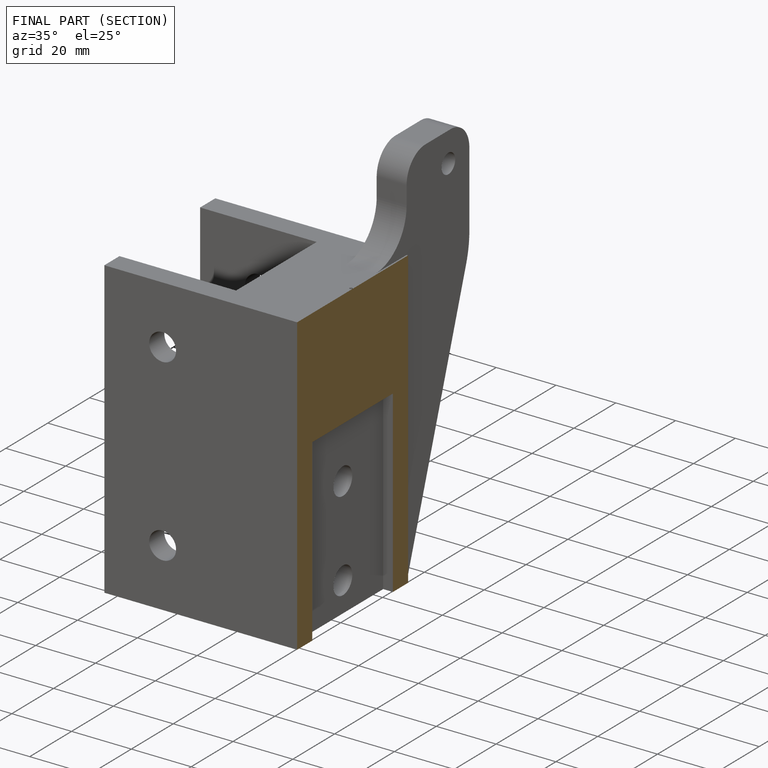
[diagram: finished part — half-section view (interior)]
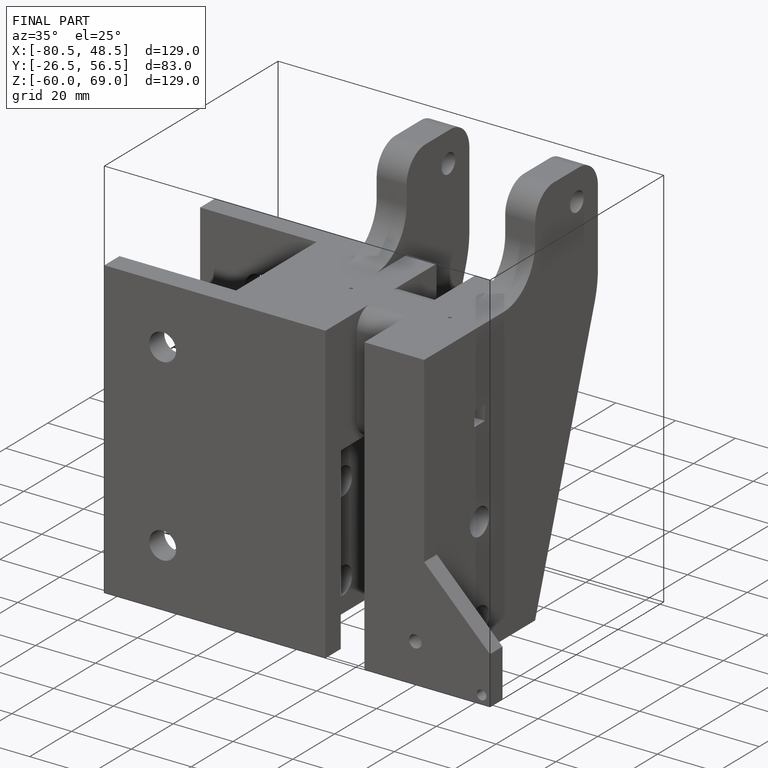
[diagram: finished part — iso view with bounding-box wireframe]
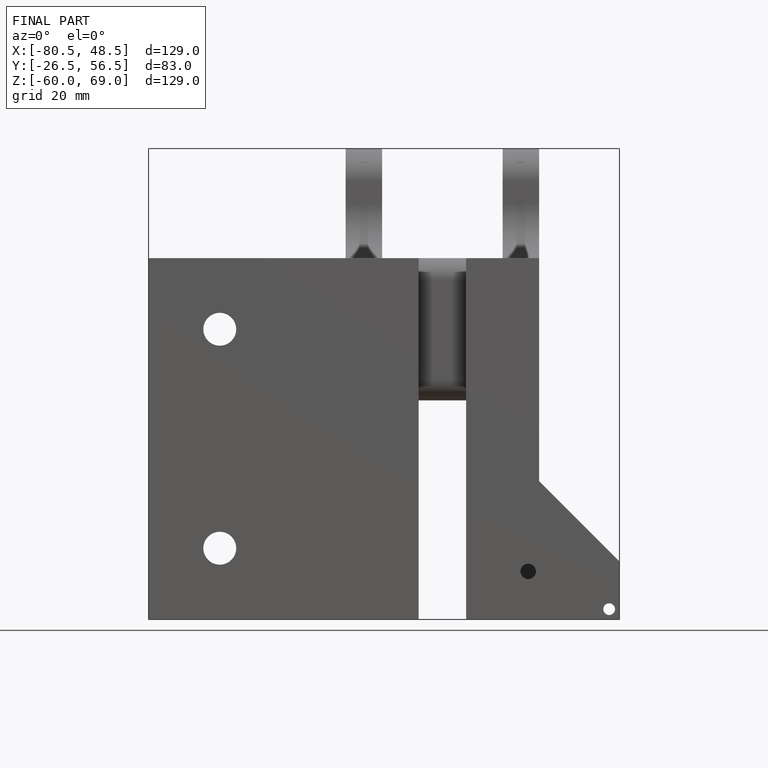
[diagram: finished part — front view with bounding-box wireframe]
